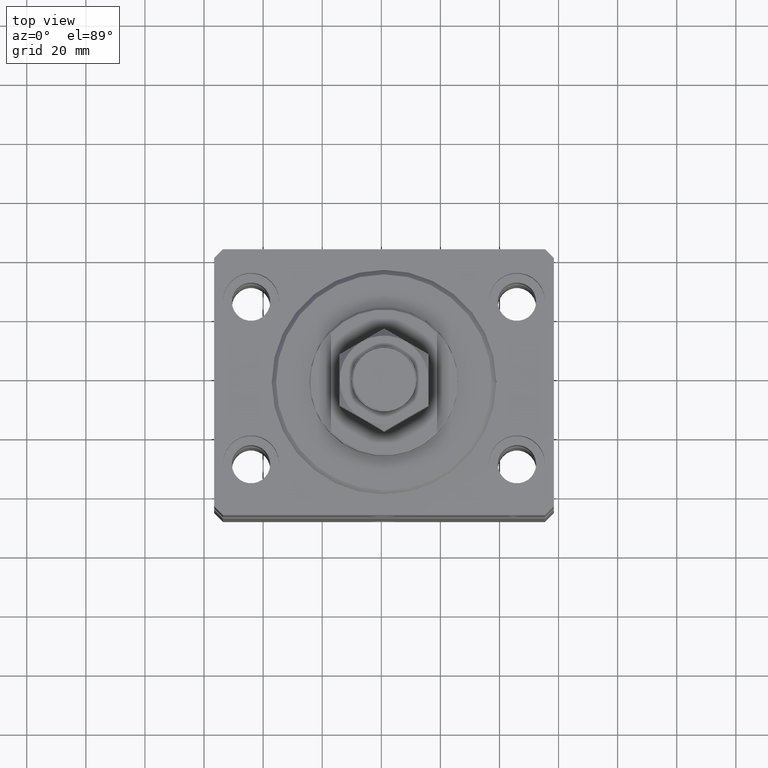
[diagram: clean part render]
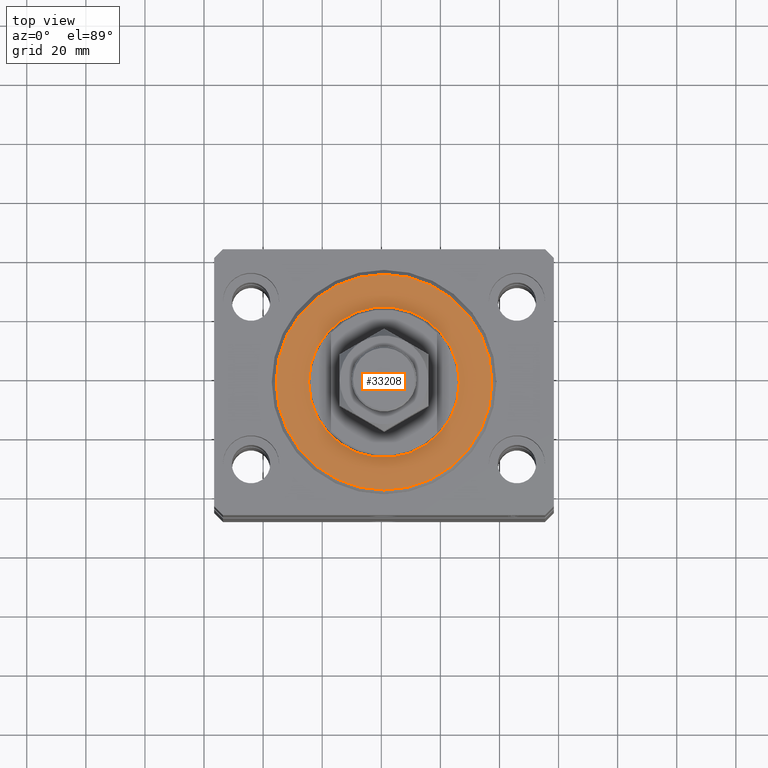
[diagram: same view with one face highlighted and labeled with its STEP entity id]
A machine part, top view. The second image highlights one B-rep face of the part: STEP entity #33208.
In plain terms, the highlighted planar face has unit normal (0, 0, -1).
Its self-contained STEP definition (entity closure, byte-faithful):
#1707 = CARTESIAN_POINT ( 'NONE',  ( -36.50000000000000000, 4.561809326823889791E-15, 0.000000000000000000 ) ) ;
#2251 = DIRECTION ( 'NONE',  ( 1.000000000000000000, 0.000000000000000000, -0.000000000000000000 ) ) ;
#3464 = ORIENTED_EDGE ( 'NONE', *, *, #35373, .T. ) ;
#6956 = CARTESIAN_POINT ( 'NONE',  ( 36.50000000000000000, 0.000000000000000000, 0.000000000000000000 ) ) ;
#7815 = CIRCLE ( 'NONE', #14842, 25.50000000000000355 ) ;
#8617 = AXIS2_PLACEMENT_3D ( 'NONE', #34093, #44549, #40648 ) ;
#10025 = PLANE ( 'NONE',  #16536 ) ;
#12100 = CIRCLE ( 'NONE', #12200, 36.50000000000000000 ) ;
#12200 = AXIS2_PLACEMENT_3D ( 'NONE', #30141, #33803, #41315 ) ;
#12870 = EDGE_CURVE ( 'NONE', #18250, #24386, #12100, .T. ) ;
#14842 = AXIS2_PLACEMENT_3D ( 'NONE', #17855, #25871, #21532 ) ;
#16536 = AXIS2_PLACEMENT_3D ( 'NONE', #24885, #25374, #2251 ) ;
#17515 = DIRECTION ( 'NONE',  ( 1.000000000000000000, 0.000000000000000000, 0.000000000000000000 ) ) ;
#17855 = CARTESIAN_POINT ( 'NONE',  ( 0.000000000000000000, 0.000000000000000000, 0.000000000000000000 ) ) ;
#18250 = VERTEX_POINT ( 'NONE', #1707 ) ;
#19535 = CIRCLE ( 'NONE', #8617, 25.50000000000000355 ) ;
#21532 = DIRECTION ( 'NONE',  ( 1.000000000000000000, 0.000000000000000000, 0.000000000000000000 ) ) ;
#24386 = VERTEX_POINT ( 'NONE', #6956 ) ;
#24885 = CARTESIAN_POINT ( 'NONE',  ( 0.000000000000000000, 0.000000000000000000, 0.000000000000000000 ) ) ;
#25374 = DIRECTION ( 'NONE',  ( 0.000000000000000000, 0.000000000000000000, 1.000000000000000000 ) ) ;
#25871 = DIRECTION ( 'NONE',  ( 0.000000000000000000, 0.000000000000000000, 1.000000000000000000 ) ) ;
#26404 = EDGE_CURVE ( 'NONE', #29059, #32814, #19535, .T. ) ;
#28690 = CARTESIAN_POINT ( 'NONE',  ( 0.000000000000000000, 0.000000000000000000, 0.000000000000000000 ) ) ;
#28871 = EDGE_CURVE ( 'NONE', #32814, #29059, #7815, .T. ) ;
#29021 = FACE_OUTER_BOUND ( 'NONE', #46883, .T. ) ;
#29059 = VERTEX_POINT ( 'NONE', #45985 ) ;
#30141 = CARTESIAN_POINT ( 'NONE',  ( 0.000000000000000000, 0.000000000000000000, 0.000000000000000000 ) ) ;
#32814 = VERTEX_POINT ( 'NONE', #45904 ) ;
#33208 = ADVANCED_FACE ( 'NONE', ( #47520, #29021 ), #10025, .F. ) ;
#33803 = DIRECTION ( 'NONE',  ( -0.000000000000000000, -0.000000000000000000, -1.000000000000000000 ) ) ;
#34093 = CARTESIAN_POINT ( 'NONE',  ( 0.000000000000000000, 0.000000000000000000, 0.000000000000000000 ) ) ;
#34232 = CIRCLE ( 'NONE', #48167, 36.50000000000000000 ) ;
#34543 = ORIENTED_EDGE ( 'NONE', *, *, #26404, .T. ) ;
#35211 = EDGE_LOOP ( 'NONE', ( #40750, #34543 ) ) ;
#35373 = EDGE_CURVE ( 'NONE', #24386, #18250, #34232, .T. ) ;
#40648 = DIRECTION ( 'NONE',  ( 1.000000000000000000, 0.000000000000000000, 0.000000000000000000 ) ) ;
#40750 = ORIENTED_EDGE ( 'NONE', *, *, #28871, .T. ) ;
#41315 = DIRECTION ( 'NONE',  ( 1.000000000000000000, 0.000000000000000000, 0.000000000000000000 ) ) ;
#44549 = DIRECTION ( 'NONE',  ( 0.000000000000000000, 0.000000000000000000, 1.000000000000000000 ) ) ;
#44693 = DIRECTION ( 'NONE',  ( -0.000000000000000000, -0.000000000000000000, -1.000000000000000000 ) ) ;
#45904 = CARTESIAN_POINT ( 'NONE',  ( 25.50000000000000355, 0.000000000000000000, 2.168404344971008868E-16 ) ) ;
#45985 = CARTESIAN_POINT ( 'NONE',  ( -25.50000000000000355, 3.122849337825751011E-15, 2.168404344971008868E-16 ) ) ;
#46883 = EDGE_LOOP ( 'NONE', ( #3464, #47396 ) ) ;
#47396 = ORIENTED_EDGE ( 'NONE', *, *, #12870, .T. ) ;
#47520 = FACE_BOUND ( 'NONE', #35211, .T. ) ;
#48167 = AXIS2_PLACEMENT_3D ( 'NONE', #28690, #44693, #17515 ) ;